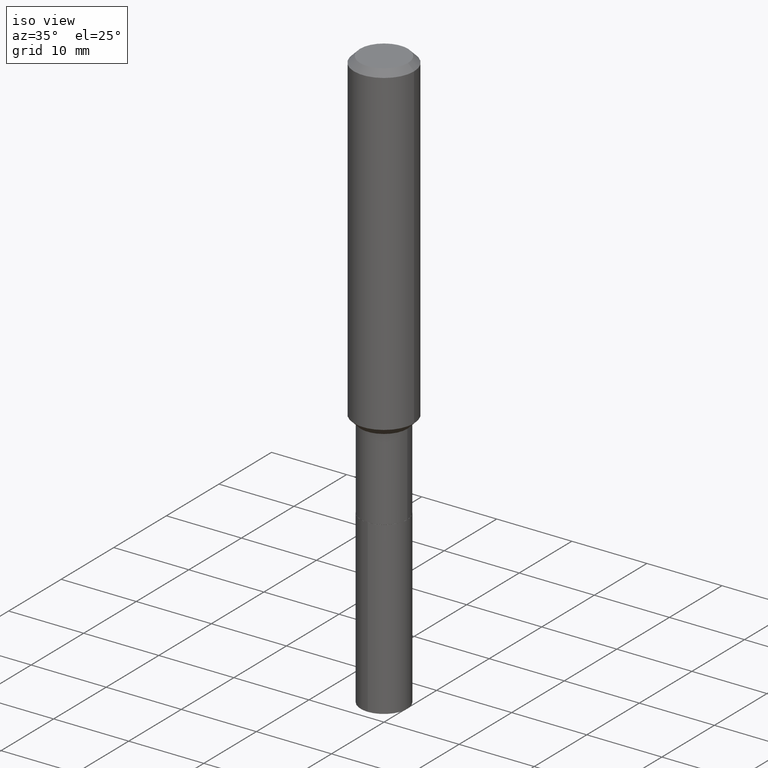
[diagram: clean part render]
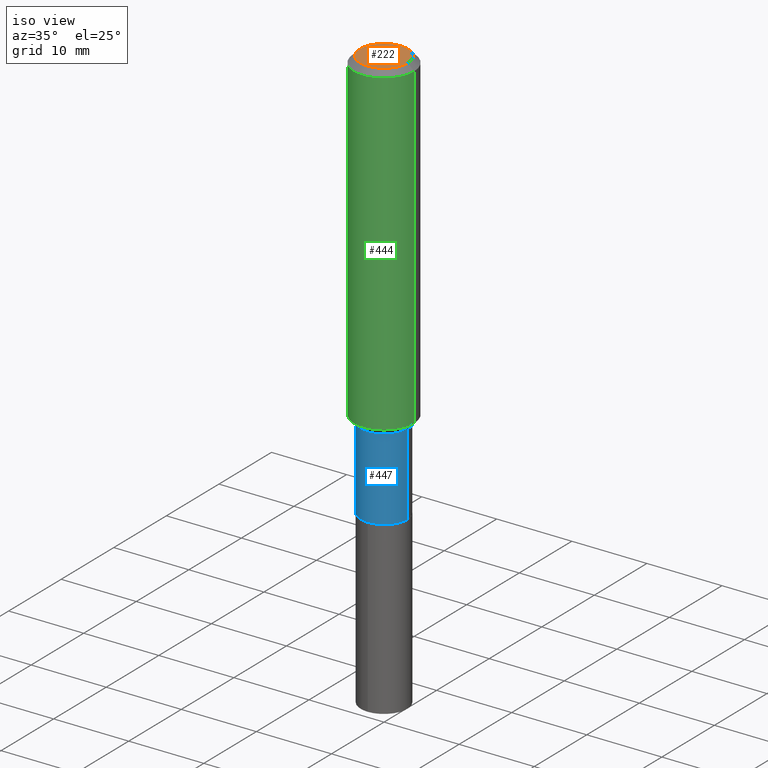
[diagram: same view with three faces highlighted in distinct colors, each labeled with its STEP entity id]
A machine part, iso view with three faces highlighted in distinct colors.
Their STEP definitions:

[orange] entity #222 — the highlighted planar face has unit normal (0, -0, -1).
#27 = CARTESIAN_POINT ( 'NONE',  ( -0.1260000000000000009, 9.348441284752484904E-16, 3.860086710906114178E-18 ) ) ;
#32 = ORIENTED_EDGE ( 'NONE', *, *, #371, .T. ) ;
#43 = CIRCLE ( 'NONE', #270, 0.1260000000000000009 ) ;
#103 = PLANE ( 'NONE',  #474 ) ;
#137 = CARTESIAN_POINT ( 'NONE',  ( -9.439721640706201686E-47, 1.347742071746726764E-32, 3.860086710912459732E-18 ) ) ;
#168 = CARTESIAN_POINT ( 'NONE',  ( -9.439721640706201686E-47, 1.347742071746726764E-32, 3.860086710912459732E-18 ) ) ;
#180 = DIRECTION ( 'NONE',  ( -1.000000000000000000, 6.982962677686265922E-15, -4.876176775795935793E-29 ) ) ;
#190 = VERTEX_POINT ( 'NONE', #27 ) ;
#193 = DIRECTION ( 'NONE',  ( 1.000000000000000000, -6.982962677686265922E-15, 4.876281427513067258E-29 ) ) ;
#222 = ADVANCED_FACE ( 'NONE', ( #293 ), #103, .F. ) ;
#243 = DIRECTION ( 'NONE',  ( 1.000000000000000000, -6.982962677686265922E-15, 4.876281427513067258E-29 ) ) ;
#264 = VERTEX_POINT ( 'NONE', #275 ) ;
#270 = AXIS2_PLACEMENT_3D ( 'NONE', #168, #285, #193 ) ;
#275 = CARTESIAN_POINT ( 'NONE',  ( 0.1260000000000000009, -1.027466422270894443E-15, 3.860086710919128072E-18 ) ) ;
#285 = DIRECTION ( 'NONE',  ( -2.445468806185136597E-29, 3.491481338843145583E-15, 1.000000000000000000 ) ) ;
#293 = FACE_OUTER_BOUND ( 'NONE', #402, .T. ) ;
#298 = DIRECTION ( 'NONE',  ( 2.438088387897960049E-29, -3.491481338843145188E-15, -1.000000000000000000 ) ) ;
#316 = ORIENTED_EDGE ( 'NONE', *, *, #415, .T. ) ;
#371 = EDGE_CURVE ( 'NONE', #190, #264, #486, .T. ) ;
#374 = CARTESIAN_POINT ( 'NONE',  ( -4.719860820353100843E-47, 6.738710358733633822E-33, 1.930043355456229866E-18 ) ) ;
#402 = EDGE_LOOP ( 'NONE', ( #32, #316 ) ) ;
#413 = AXIS2_PLACEMENT_3D ( 'NONE', #137, #478, #243 ) ;
#415 = EDGE_CURVE ( 'NONE', #264, #190, #43, .T. ) ;
#474 = AXIS2_PLACEMENT_3D ( 'NONE', #374, #298, #180 ) ;
#478 = DIRECTION ( 'NONE',  ( -2.445468806185136597E-29, 3.491481338843145583E-15, 1.000000000000000000 ) ) ;
#486 = CIRCLE ( 'NONE', #413, 0.1260000000000000009 ) ;

[blue] entity #447 — the highlighted cylindrical surface (edge-blend (fillet) strip) has radius 3.1001 mm, axis along (-0, 0, 1).
#4 = CIRCLE ( 'NONE', #80, 0.1220499999999999780 ) ;
#70 = CARTESIAN_POINT ( 'NONE',  ( -0.1220499999999999502, -5.940822053615047978E-15, -1.735000000000000098 ) ) ;
#75 = VERTEX_POINT ( 'NONE', #124 ) ;
#80 = AXIS2_PLACEMENT_3D ( 'NONE', #86, #399, #207 ) ;
#82 = DIRECTION ( 'NONE',  ( 1.000000000000000000, -6.982962677686266711E-15, 4.876176775795935793E-29 ) ) ;
#86 = CARTESIAN_POINT ( 'NONE',  ( 5.293950871629583880E-29, -7.558358802327641618E-15, -2.164800000000000058 ) ) ;
#88 = ORIENTED_EDGE ( 'NONE', *, *, #463, .F. ) ;
#89 = DIRECTION ( 'NONE',  ( -2.445468806185136597E-29, 3.491481338843145583E-15, 1.000000000000000000 ) ) ;
#111 = DIRECTION ( 'NONE',  ( -2.445468806185136877E-29, 3.491481338843145188E-15, 1.000000000000000000 ) ) ;
#117 = FACE_OUTER_BOUND ( 'NONE', #417, .T. ) ;
#124 = CARTESIAN_POINT ( 'NONE',  ( -0.1220500000000000057, -5.940822053615047978E-15, -2.164800000000000058 ) ) ;
#133 = CARTESIAN_POINT ( 'NONE',  ( 0.000000000000000000, 0.000000000000000000, 0.000000000000000000 ) ) ;
#141 = LINE ( 'NONE', #295, #164 ) ;
#163 = EDGE_CURVE ( 'NONE', #75, #348, #141, .T. ) ;
#164 = VECTOR ( 'NONE', #440, 39.37007874015748143 ) ;
#167 = CARTESIAN_POINT ( 'NONE',  ( 0.1220499999999999502, -6.909990717704466794E-15, -1.735000000000000098 ) ) ;
#207 = DIRECTION ( 'NONE',  ( 1.000000000000000000, -6.982962677686265133E-15, 0.000000000000000000 ) ) ;
#208 = AXIS2_PLACEMENT_3D ( 'NONE', #403, #314, #213 ) ;
#213 = DIRECTION ( 'NONE',  ( 1.000000000000000000, -6.982962677686266711E-15, 0.000000000000000000 ) ) ;
#229 = CIRCLE ( 'NONE', #208, 0.1220499999999999502 ) ;
#256 = VECTOR ( 'NONE', #111, 39.37007874015748143 ) ;
#266 = ORIENTED_EDGE ( 'NONE', *, *, #364, .T. ) ;
#267 = CARTESIAN_POINT ( 'NONE',  ( 0.1220499999999999780, -8.410629397139250426E-15, -2.164800000000000058 ) ) ;
#276 = EDGE_CURVE ( 'NONE', #75, #431, #4, .T. ) ;
#288 = LINE ( 'NONE', #330, #256 ) ;
#295 = CARTESIAN_POINT ( 'NONE',  ( -0.1220499999999999641, 8.672174089952020216E-16, -6.003560277656110794E-30 ) ) ;
#314 = DIRECTION ( 'NONE',  ( -2.445468806185136597E-29, 3.491481338843145583E-15, 1.000000000000000000 ) ) ;
#323 = CYLINDRICAL_SURFACE ( 'NONE', #445, 0.1220499999999999641 ) ;
#330 = CARTESIAN_POINT ( 'NONE',  ( 0.1220499999999999641, -8.522705948116086106E-16, 5.951373754858937892E-30 ) ) ;
#348 = VERTEX_POINT ( 'NONE', #70 ) ;
#364 = EDGE_CURVE ( 'NONE', #431, #446, #288, .T. ) ;
#399 = DIRECTION ( 'NONE',  ( -2.445468806185136597E-29, 3.491481338843145583E-15, 1.000000000000000000 ) ) ;
#403 = CARTESIAN_POINT ( 'NONE',  ( 4.242888378731212847E-29, -6.057720122892857986E-15, -1.735000000000000098 ) ) ;
#417 = EDGE_LOOP ( 'NONE', ( #455, #427, #266, #88 ) ) ;
#427 = ORIENTED_EDGE ( 'NONE', *, *, #276, .T. ) ;
#431 = VERTEX_POINT ( 'NONE', #267 ) ;
#440 = DIRECTION ( 'NONE',  ( -2.445468806185136877E-29, 3.491481338843145188E-15, 1.000000000000000000 ) ) ;
#445 = AXIS2_PLACEMENT_3D ( 'NONE', #133, #89, #82 ) ;
#446 = VERTEX_POINT ( 'NONE', #167 ) ;
#447 = ADVANCED_FACE ( 'NONE', ( #117 ), #323, .T. ) ;
#455 = ORIENTED_EDGE ( 'NONE', *, *, #163, .F. ) ;
#463 = EDGE_CURVE ( 'NONE', #348, #446, #229, .T. ) ;

[green] entity #444 — the highlighted cylindrical surface (partial cylindrical patch) has radius 4.0005 mm, axis along (-0, 0, 1).
#21 = CARTESIAN_POINT ( 'NONE',  ( 7.703226739483228723E-31, -1.099816621735597661E-16, -0.03150000000000019451 ) ) ;
#37 = EDGE_LOOP ( 'NONE', ( #257, #263, #322, #113 ) ) ;
#42 = VERTEX_POINT ( 'NONE', #191 ) ;
#60 = DIRECTION ( 'NONE',  ( -2.445468806185136597E-29, 3.491481338843145583E-15, 1.000000000000000000 ) ) ;
#71 = EDGE_CURVE ( 'NONE', #347, #423, #468, .T. ) ;
#84 = LINE ( 'NONE', #236, #367 ) ;
#95 = DIRECTION ( 'NONE',  ( 1.000000000000000000, -6.982962677686265922E-15, 0.000000000000000000 ) ) ;
#100 = CARTESIAN_POINT ( 'NONE',  ( -0.1575000000000001954, -4.814842300608708286E-15, -1.699550000000000116 ) ) ;
#113 = ORIENTED_EDGE ( 'NONE', *, *, #343, .F. ) ;
#146 = CYLINDRICAL_SURFACE ( 'NONE', #221, 0.1575000000000000844 ) ;
#172 = DIRECTION ( 'NONE',  ( -2.445468806185136877E-29, 3.491481338843145188E-15, 1.000000000000000000 ) ) ;
#176 = CIRCLE ( 'NONE', #253, 0.1575000000000001954 ) ;
#191 = CARTESIAN_POINT ( 'NONE',  ( -0.1575000000000000011, -1.902859576980055070E-15, -0.03150000000000019451 ) ) ;
#206 = CARTESIAN_POINT ( 'NONE',  ( 0.1575000000000000844, -1.099816621735587677E-15, 7.679978421878603638E-30 ) ) ;
#221 = AXIS2_PLACEMENT_3D ( 'NONE', #450, #470, #433 ) ;
#236 = CARTESIAN_POINT ( 'NONE',  ( -0.1575000000000000844, 1.119104808822158392E-15, -7.747322767151481189E-30 ) ) ;
#251 = CARTESIAN_POINT ( 'NONE',  ( 4.156196509551949590E-29, -5.933947109430868256E-15, -1.699550000000000116 ) ) ;
#253 = AXIS2_PLACEMENT_3D ( 'NONE', #251, #60, #333 ) ;
#257 = ORIENTED_EDGE ( 'NONE', *, *, #477, .F. ) ;
#263 = ORIENTED_EDGE ( 'NONE', *, *, #310, .T. ) ;
#281 = DIRECTION ( 'NONE',  ( -2.445468806185136877E-29, 3.491481338843145188E-15, 1.000000000000000000 ) ) ;
#308 = VERTEX_POINT ( 'NONE', #100 ) ;
#310 = EDGE_CURVE ( 'NONE', #308, #347, #176, .T. ) ;
#322 = ORIENTED_EDGE ( 'NONE', *, *, #71, .T. ) ;
#331 = CARTESIAN_POINT ( 'NONE',  ( 0.1575000000000001954, -7.033763731166457314E-15, -1.699550000000000116 ) ) ;
#333 = DIRECTION ( 'NONE',  ( 1.000000000000000000, -6.982962677686265922E-15, 0.000000000000000000 ) ) ;
#338 = DIRECTION ( 'NONE',  ( -2.445468806185136597E-29, 3.491481338843145583E-15, 1.000000000000000000 ) ) ;
#343 = EDGE_CURVE ( 'NONE', #42, #423, #366, .T. ) ;
#347 = VERTEX_POINT ( 'NONE', #331 ) ;
#349 = CARTESIAN_POINT ( 'NONE',  ( 0.1575000000000000011, -1.209798283909146741E-15, -0.03150000000000019451 ) ) ;
#360 = VECTOR ( 'NONE', #281, 39.37007874015748143 ) ;
#366 = CIRCLE ( 'NONE', #467, 0.1575000000000000011 ) ;
#367 = VECTOR ( 'NONE', #172, 39.37007874015748143 ) ;
#423 = VERTEX_POINT ( 'NONE', #349 ) ;
#425 = FACE_OUTER_BOUND ( 'NONE', #37, .T. ) ;
#433 = DIRECTION ( 'NONE',  ( 1.000000000000000000, -6.982962677686267499E-15, 4.876176775795936353E-29 ) ) ;
#444 = ADVANCED_FACE ( 'NONE', ( #425 ), #146, .T. ) ;
#450 = CARTESIAN_POINT ( 'NONE',  ( 0.000000000000000000, 0.000000000000000000, 0.000000000000000000 ) ) ;
#467 = AXIS2_PLACEMENT_3D ( 'NONE', #21, #338, #95 ) ;
#468 = LINE ( 'NONE', #206, #360 ) ;
#470 = DIRECTION ( 'NONE',  ( -2.445468806185136597E-29, 3.491481338843145583E-15, 1.000000000000000000 ) ) ;
#477 = EDGE_CURVE ( 'NONE', #308, #42, #84, .T. ) ;